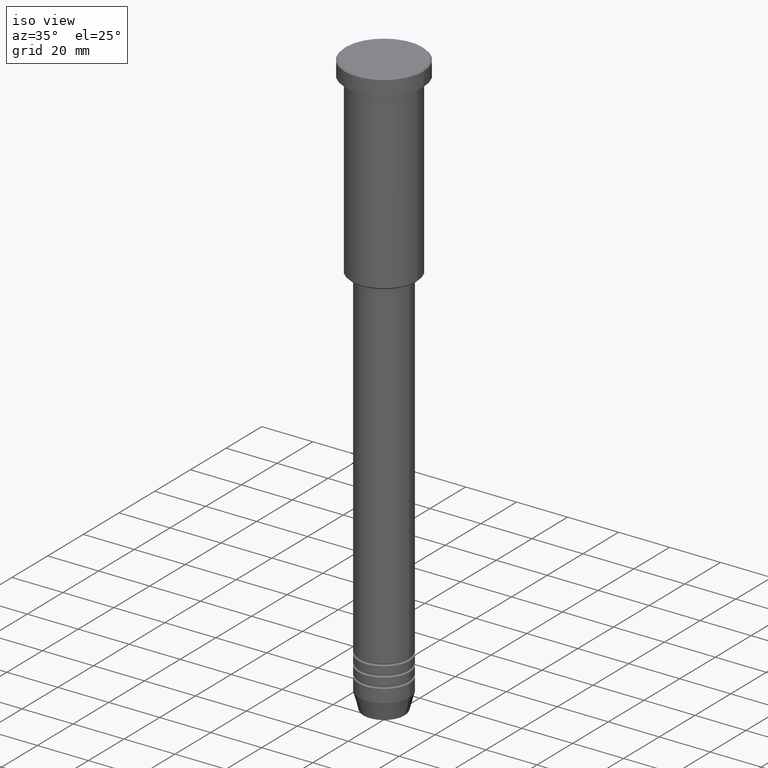
[diagram: clean part render]
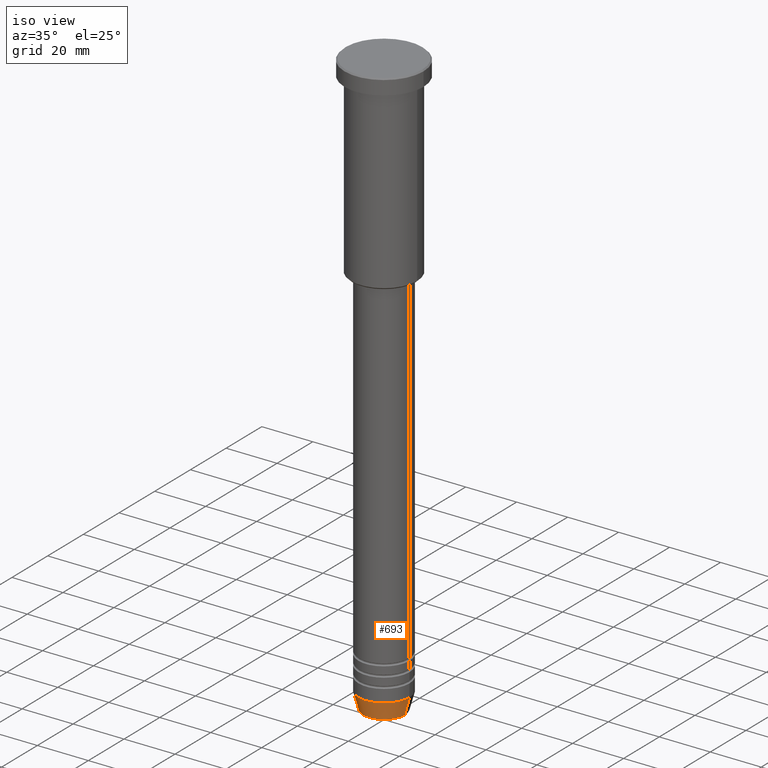
[diagram: same view with one face highlighted and labeled with its STEP entity id]
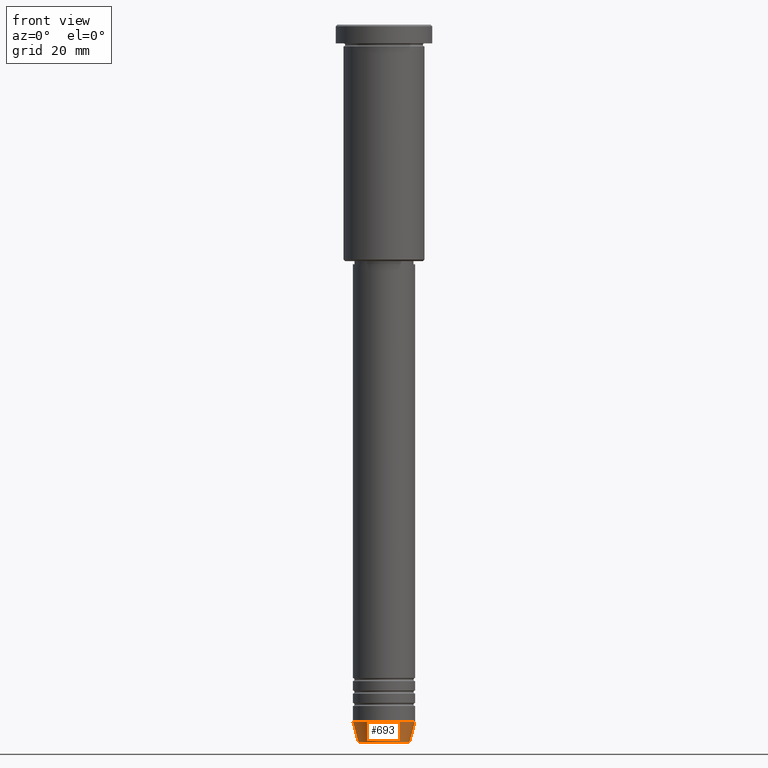
[diagram: same view with one face highlighted and labeled with its STEP entity id]
A machine part, iso view. The second image highlights one B-rep face of the part: STEP entity #693.
A second angle (front view) of the same face is appended — the face is thin or edge-on in the first view.
In plain terms, the highlighted conical surface has half-angle 15 deg.
Its self-contained STEP definition (entity closure, byte-faithful):
#26 = CIRCLE ( 'NONE', #544, 8.223655072137185940 ) ;
#49 = VECTOR ( 'NONE', #687, 1000.000000000000114 ) ;
#63 = CARTESIAN_POINT ( 'NONE',  ( 10.00000000000000000, 0.000000000000000000, -223.9999999999999716 ) ) ;
#151 = DIRECTION ( 'NONE',  ( 0.2588190451025210725, 0.000000000000000000, 0.9659258262890680902 ) ) ;
#196 = ORIENTED_EDGE ( 'NONE', *, *, #258, .T. ) ;
#211 = VERTEX_POINT ( 'NONE', #694 ) ;
#226 = EDGE_CURVE ( 'NONE', #1176, #668, #428, .T. ) ;
#233 = CARTESIAN_POINT ( 'NONE',  ( -10.00000000000000000, 1.224646799147353256E-15, -223.9999999999999716 ) ) ;
#236 = LINE ( 'NONE', #321, #49 ) ;
#242 = DIRECTION ( 'NONE',  ( -0.000000000000000000, -0.000000000000000000, 1.000000000000000000 ) ) ;
#257 = EDGE_LOOP ( 'NONE', ( #631, #196, #461, #738 ) ) ;
#258 = EDGE_CURVE ( 'NONE', #211, #1176, #26, .T. ) ;
#271 = EDGE_CURVE ( 'NONE', #211, #962, #236, .T. ) ;
#321 = CARTESIAN_POINT ( 'NONE',  ( -10.00000000000000000, 1.224646799147353256E-15, -223.9999999999999716 ) ) ;
#333 = EDGE_CURVE ( 'NONE', #962, #668, #443, .T. ) ;
#344 = CARTESIAN_POINT ( 'NONE',  ( 8.223655072137185940, 0.000000000000000000, -230.6294095225512706 ) ) ;
#428 = LINE ( 'NONE', #895, #1079 ) ;
#440 = CARTESIAN_POINT ( 'NONE',  ( 0.000000000000000000, 0.000000000000000000, -223.9999999999999716 ) ) ;
#443 = CIRCLE ( 'NONE', #1116, 10.00000000000000000 ) ;
#447 = AXIS2_PLACEMENT_3D ( 'NONE', #899, #911, #917 ) ;
#461 = ORIENTED_EDGE ( 'NONE', *, *, #226, .T. ) ;
#544 = AXIS2_PLACEMENT_3D ( 'NONE', #1055, #242, #966 ) ;
#631 = ORIENTED_EDGE ( 'NONE', *, *, #271, .F. ) ;
#668 = VERTEX_POINT ( 'NONE', #63 ) ;
#687 = DIRECTION ( 'NONE',  ( -0.2588190451025210725, 3.169619151431769255E-17, 0.9659258262890680902 ) ) ;
#693 = ADVANCED_FACE ( 'NONE', ( #998 ), #845, .T. ) ;
#694 = CARTESIAN_POINT ( 'NONE',  ( -8.223655072137185940, 1.115877042642911659E-15, -230.6294095225512706 ) ) ;
#738 = ORIENTED_EDGE ( 'NONE', *, *, #333, .F. ) ;
#815 = DIRECTION ( 'NONE',  ( 1.000000000000000000, 0.000000000000000000, 0.000000000000000000 ) ) ;
#836 = DIRECTION ( 'NONE',  ( -0.000000000000000000, -0.000000000000000000, 1.000000000000000000 ) ) ;
#845 = CONICAL_SURFACE ( 'NONE', #447, 10.00000000000000000, 0.2617993877991497964 ) ;
#895 = CARTESIAN_POINT ( 'NONE',  ( 10.00000000000000000, 0.000000000000000000, -223.9999999999999716 ) ) ;
#899 = CARTESIAN_POINT ( 'NONE',  ( 0.000000000000000000, 0.000000000000000000, -223.9999999999999716 ) ) ;
#911 = DIRECTION ( 'NONE',  ( -0.000000000000000000, -0.000000000000000000, 1.000000000000000000 ) ) ;
#917 = DIRECTION ( 'NONE',  ( 1.000000000000000000, 0.000000000000000000, 0.000000000000000000 ) ) ;
#962 = VERTEX_POINT ( 'NONE', #233 ) ;
#966 = DIRECTION ( 'NONE',  ( 1.000000000000000000, 0.000000000000000000, 0.000000000000000000 ) ) ;
#998 = FACE_OUTER_BOUND ( 'NONE', #257, .T. ) ;
#1055 = CARTESIAN_POINT ( 'NONE',  ( 0.000000000000000000, 0.000000000000000000, -230.6294095225512706 ) ) ;
#1079 = VECTOR ( 'NONE', #151, 1000.000000000000114 ) ;
#1116 = AXIS2_PLACEMENT_3D ( 'NONE', #440, #836, #815 ) ;
#1176 = VERTEX_POINT ( 'NONE', #344 ) ;